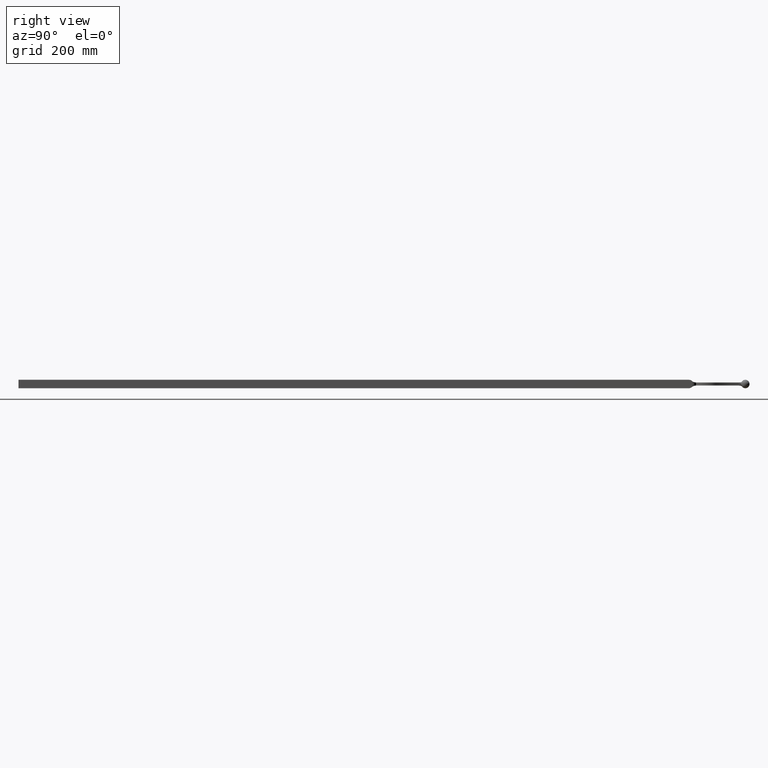
[diagram: clean part render]
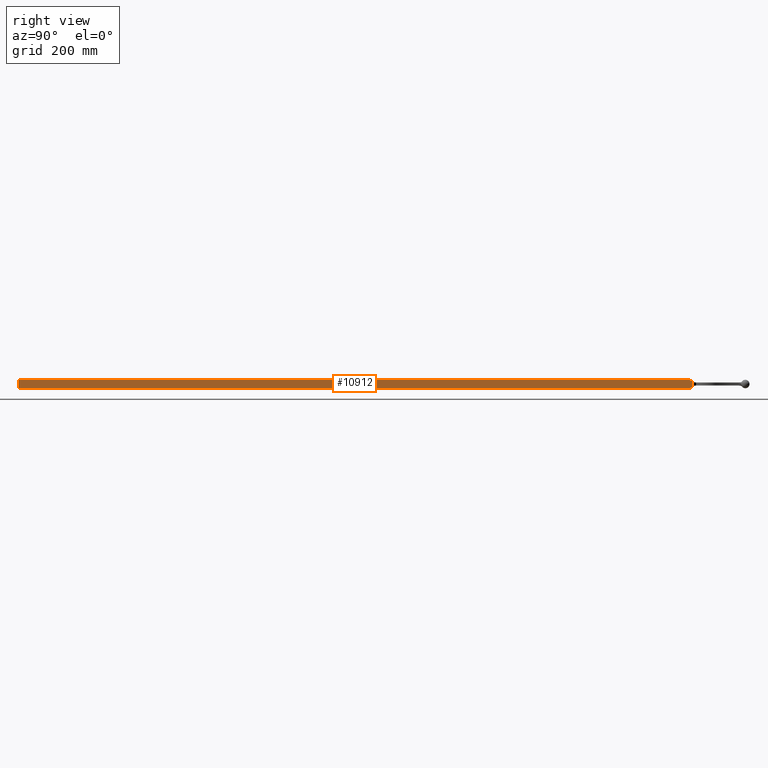
[diagram: same view with one face highlighted and labeled with its STEP entity id]
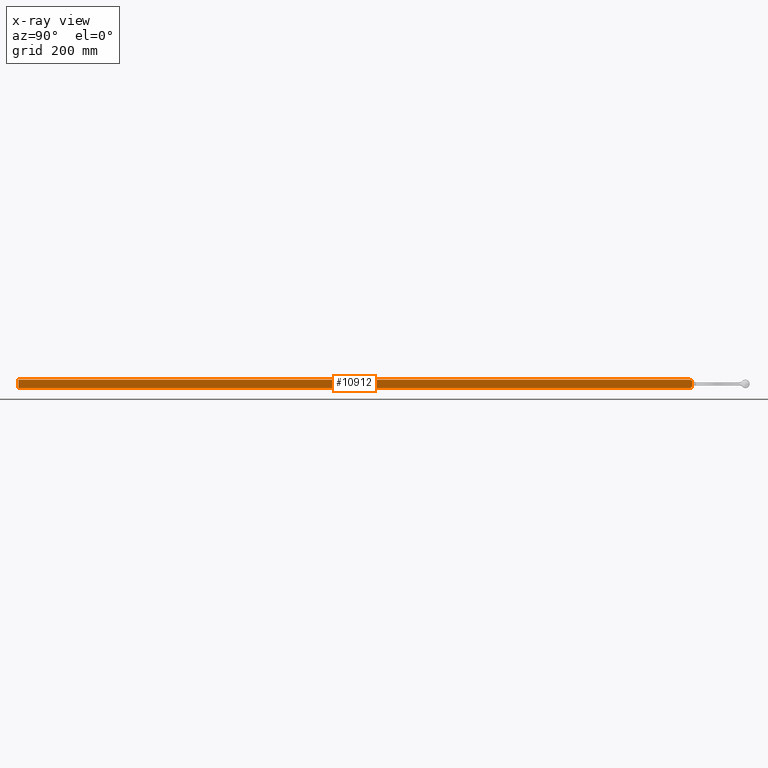
[diagram: x-ray of the same camera — body ghosted, the highlighted face saturated]
A machine part, right view. The second image highlights one B-rep face of the part: STEP entity #10912.
The next image is the same camera in x-ray: the body ghosted, the highlighted face saturated — about 0% of this face is hidden behind the body in this view.
In plain terms, the highlighted planar face has unit normal (-1, 0, 0).
Its self-contained STEP definition (entity closure, byte-faithful):
#10 = VERTEX_POINT ( 'NONE', #12360 ) ;
#725 = AXIS2_PLACEMENT_3D ( 'NONE', #4986, #5064, #5991 ) ;
#1546 = EDGE_CURVE ( 'NONE', #9281, #6172, #9226, .T. ) ;
#1716 = CARTESIAN_POINT ( 'NONE',  ( 7.000000000000001776, -1112.000000000000000, 6.999999999999998224 ) ) ;
#2277 = DIRECTION ( 'NONE',  ( 0.000000000000000000, 8.673617379884035472E-16, 1.000000000000000000 ) ) ;
#2425 = CARTESIAN_POINT ( 'NONE',  ( 7.000000000000001776, -1112.000000000000000, -6.999999999999998224 ) ) ;
#2457 = CARTESIAN_POINT ( 'NONE',  ( 7.000000000000002665, -6.614378277661477235, 4.999999999999994671 ) ) ;
#3117 = VERTEX_POINT ( 'NONE', #4311 ) ;
#3165 = AXIS2_PLACEMENT_3D ( 'NONE', #12001, #3966, #7031 ) ;
#3510 = VECTOR ( 'NONE', #6212, 1000.000000000000000 ) ;
#3966 = DIRECTION ( 'NONE',  ( -1.000000000000000000, 0.000000000000000000, 0.000000000000000000 ) ) ;
#4057 = PLANE ( 'NONE',  #725 ) ;
#4137 = CARTESIAN_POINT ( 'NONE',  ( 7.000000000000001776, -1112.000000000000000, -6.999999999999998224 ) ) ;
#4149 = DIRECTION ( 'NONE',  ( -0.000000000000000000, -0.000000000000000000, 1.000000000000000000 ) ) ;
#4252 = ORIENTED_EDGE ( 'NONE', *, *, #1546, .T. ) ;
#4303 = VECTOR ( 'NONE', #5611, 1000.000000000000000 ) ;
#4311 = CARTESIAN_POINT ( 'NONE',  ( 7.000000000000002665, -11.90588089979068975, -6.999999999999999112 ) ) ;
#4459 = VECTOR ( 'NONE', #4149, 1000.000000000000000 ) ;
#4986 = CARTESIAN_POINT ( 'NONE',  ( 7.000000000000001776, -1112.000000000000000, -6.999999999999998224 ) ) ;
#5064 = DIRECTION ( 'NONE',  ( -1.000000000000000000, 0.000000000000000000, 0.000000000000000000 ) ) ;
#5230 = CIRCLE ( 'NONE', #3165, 8.000000000000000000 ) ;
#5290 = DIRECTION ( 'NONE',  ( 1.000000000000000000, -0.000000000000000000, -0.000000000000000000 ) ) ;
#5611 = DIRECTION ( 'NONE',  ( 0.000000000000000000, 0.000000000000000000, 1.000000000000000000 ) ) ;
#5914 = LINE ( 'NONE', #1716, #6235 ) ;
#5991 = DIRECTION ( 'NONE',  ( 0.000000000000000000, 0.000000000000000000, 1.000000000000000000 ) ) ;
#6100 = AXIS2_PLACEMENT_3D ( 'NONE', #6268, #5290, #2277 ) ;
#6172 = VERTEX_POINT ( 'NONE', #2457 ) ;
#6212 = DIRECTION ( 'NONE',  ( -0.000000000000000000, 1.000000000000000000, -0.000000000000000000 ) ) ;
#6235 = VECTOR ( 'NONE', #10774, 1000.000000000000000 ) ;
#6268 = CARTESIAN_POINT ( 'NONE',  ( 7.000000000000002665, -11.90588089979065956, -1.000000000000000888 ) ) ;
#6298 = VERTEX_POINT ( 'NONE', #7451 ) ;
#6383 = EDGE_CURVE ( 'NONE', #10, #6298, #5914, .T. ) ;
#6497 = LINE ( 'NONE', #4137, #3510 ) ;
#6835 = FACE_OUTER_BOUND ( 'NONE', #12233, .T. ) ;
#7031 = DIRECTION ( 'NONE',  ( 0.000000000000000000, 0.000000000000000000, 1.000000000000000000 ) ) ;
#7204 = ORIENTED_EDGE ( 'NONE', *, *, #8368, .T. ) ;
#7317 = CARTESIAN_POINT ( 'NONE',  ( 7.000000000000002665, -6.614378277661477235, -7.000000000000006217 ) ) ;
#7340 = LINE ( 'NONE', #2425, #4303 ) ;
#7451 = CARTESIAN_POINT ( 'NONE',  ( 7.000000000000002665, -11.90588089979065956, 6.999999999999999112 ) ) ;
#7835 = VERTEX_POINT ( 'NONE', #11636 ) ;
#8234 = ORIENTED_EDGE ( 'NONE', *, *, #9617, .F. ) ;
#8368 = EDGE_CURVE ( 'NONE', #6172, #6298, #11591, .T. ) ;
#8664 = ORIENTED_EDGE ( 'NONE', *, *, #12435, .T. ) ;
#9226 = LINE ( 'NONE', #7317, #4459 ) ;
#9281 = VERTEX_POINT ( 'NONE', #12943 ) ;
#9617 = EDGE_CURVE ( 'NONE', #7835, #10, #7340, .T. ) ;
#10774 = DIRECTION ( 'NONE',  ( -0.000000000000000000, 1.000000000000000000, -0.000000000000000000 ) ) ;
#10906 = EDGE_CURVE ( 'NONE', #9281, #3117, #5230, .T. ) ;
#10912 = ADVANCED_FACE ( 'NONE', ( #6835 ), #4057, .F. ) ;
#11416 = ORIENTED_EDGE ( 'NONE', *, *, #6383, .F. ) ;
#11591 = CIRCLE ( 'NONE', #6100, 8.000000000000000000 ) ;
#11636 = CARTESIAN_POINT ( 'NONE',  ( 7.000000000000001776, -1112.000000000000000, -6.999999999999998224 ) ) ;
#11673 = ORIENTED_EDGE ( 'NONE', *, *, #10906, .F. ) ;
#12001 = CARTESIAN_POINT ( 'NONE',  ( 7.000000000000002665, -11.90588089979065956, 1.000000000000000888 ) ) ;
#12233 = EDGE_LOOP ( 'NONE', ( #4252, #7204, #11416, #8234, #8664, #11673 ) ) ;
#12360 = CARTESIAN_POINT ( 'NONE',  ( 7.000000000000001776, -1112.000000000000000, 6.999999999999998224 ) ) ;
#12435 = EDGE_CURVE ( 'NONE', #7835, #3117, #6497, .T. ) ;
#12943 = CARTESIAN_POINT ( 'NONE',  ( 7.000000000000002665, -6.614378277661478123, -4.999999999999999112 ) ) ;